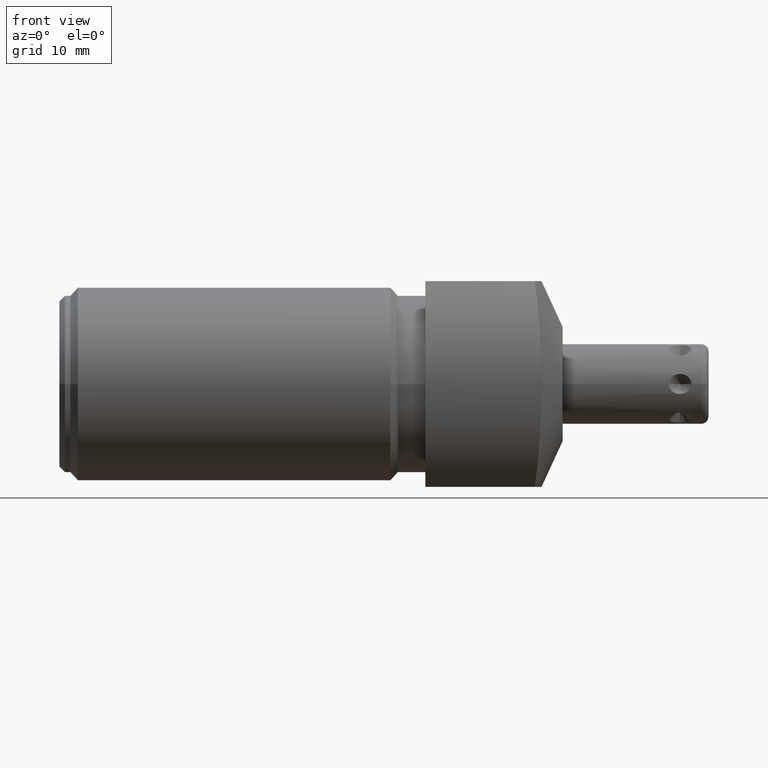
[diagram: clean part render]
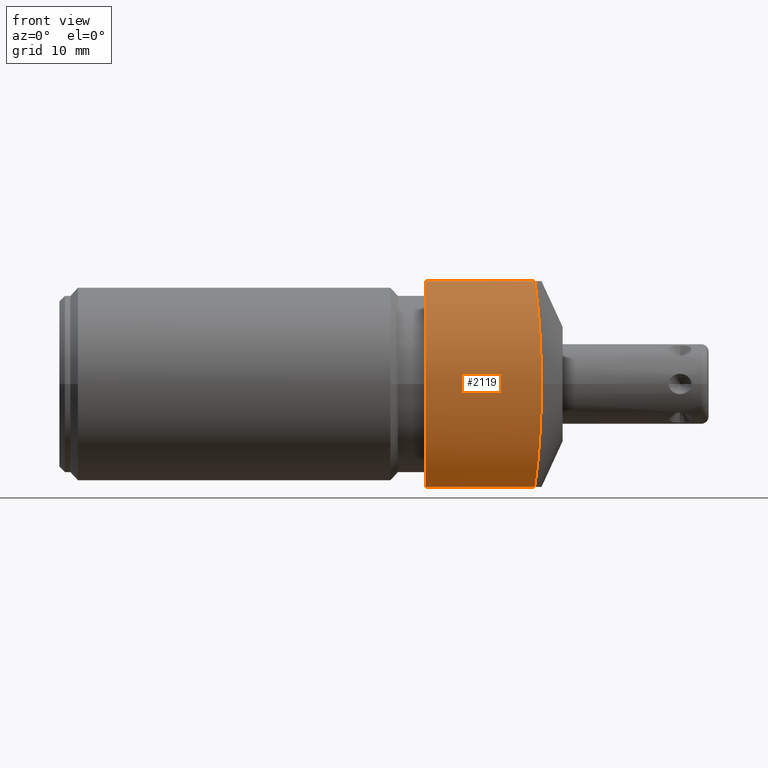
[diagram: same view with one face highlighted and labeled with its STEP entity id]
A machine part, front view. The second image highlights one B-rep face of the part: STEP entity #2119.
In plain terms, the highlighted cylindrical surface (partial cylindrical patch) has radius 19.05 mm, axis along (1, 0, 0).
Its self-contained STEP definition (entity closure, byte-faithful):
#206=DIRECTION('',(1.E0,0.E0,0.E0));
#207=VECTOR('',#206,5.976003223953E-1);
#208=CARTESIAN_POINT('',(0.E0,-4.960783708246E-1,-5.625E-1));
#209=LINE('',#208,#207);
#338=CARTESIAN_POINT('',(0.E0,0.E0,0.E0));
#339=DIRECTION('',(1.E0,0.E0,0.E0));
#340=DIRECTION('',(0.E0,-6.614378277661E-1,7.5E-1));
#341=AXIS2_PLACEMENT_3D('',#338,#339,#340);
#636=CARTESIAN_POINT('',(6.343557007776E-1,-7.5E-1,0.E0));
#637=CARTESIAN_POINT('',(6.343557007776E-1,-7.5E-1,-2.639945227058E-2));
#638=CARTESIAN_POINT('',(6.339228743735E-1,-7.472089192813E-1,
-7.921164799552E-2));
#639=CARTESIAN_POINT('',(6.319914703219E-1,-7.346925548924E-1,
-1.575620260070E-1));
#640=CARTESIAN_POINT('',(6.288224715053E-1,-7.139555821587E-1,
-2.342427704134E-1));
#641=CARTESIAN_POINT('',(6.244924603731E-1,-6.852191351177E-1,
-3.083562685212E-1));
#642=CARTESIAN_POINT('',(6.190914041522E-1,-6.487235541059E-1,
-3.791756269234E-1));
#643=CARTESIAN_POINT('',(6.127404277032E-1,-6.048849800505E-1,
-4.457974419392E-1));
#644=CARTESIAN_POINT('',(6.055634018664E-1,-5.541430465208E-1,
-5.074980845745E-1));
#645=CARTESIAN_POINT('',(6.003168663148E-1,-5.160731810444E-1,
-5.448662348822E-1));
#646=CARTESIAN_POINT('',(5.976003223953E-1,-4.960783708246E-1,-5.625E-1));
#704=DIRECTION('',(1.E0,0.E0,0.E0));
#705=VECTOR('',#704,5.976003223953E-1);
#706=CARTESIAN_POINT('',(0.E0,-4.960783708246E-1,5.625E-1));
#707=LINE('',#706,#705);
#851=CARTESIAN_POINT('',(5.976003223953E-1,-4.960783708246E-1,5.625E-1));
#852=CARTESIAN_POINT('',(6.003148187378E-1,-5.160581100889E-1,
5.448795262156E-1));
#853=CARTESIAN_POINT('',(6.055591584932E-1,-5.541126530407E-1,
5.075310416793E-1));
#854=CARTESIAN_POINT('',(6.127387135068E-1,-6.048732142353E-1,
4.458158248187E-1));
#855=CARTESIAN_POINT('',(6.190931965279E-1,-6.487359359638E-1,
3.791574280828E-1));
#856=CARTESIAN_POINT('',(6.244961663081E-1,-6.852439972541E-1,
3.083035404139E-1));
#857=CARTESIAN_POINT('',(6.288263025028E-1,-7.139808163733E-1,
2.341673035868E-1));
#858=CARTESIAN_POINT('',(6.319941013816E-1,-7.347096588366E-1,
1.574810061401E-1));
#859=CARTESIAN_POINT('',(6.339236696225E-1,-7.472140450314E-1,
7.915054299052E-2));
#860=CARTESIAN_POINT('',(6.343557007776E-1,-7.5E-1,2.637559111290E-2));
#861=CARTESIAN_POINT('',(6.343557007776E-1,-7.5E-1,0.E0));
#1485=CARTESIAN_POINT('',(0.E0,-4.960783708246E-1,-5.625E-1));
#1487=VERTEX_POINT('',#1485);
#1490=CARTESIAN_POINT('',(0.E0,-4.960783708246E-1,5.625E-1));
#1492=VERTEX_POINT('',#1490);
#1497=VERTEX_POINT('',#636);
#1498=VERTEX_POINT('',#646);
#1499=VERTEX_POINT('',#851);
#2105=CARTESIAN_POINT('',(7.5E-1,0.E0,0.E0));
#2106=DIRECTION('',(1.E0,0.E0,0.E0));
#2107=DIRECTION('',(0.E0,0.E0,-1.E0));
#2108=AXIS2_PLACEMENT_3D('',#2105,#2106,#2107);
#2109=CYLINDRICAL_SURFACE('',#2108,7.5E-1);
#2110=ORIENTED_EDGE('',*,*,#2092,.T.);
#2111=ORIENTED_EDGE('',*,*,#1766,.F.);
#2112=ORIENTED_EDGE('',*,*,#1841,.F.);
#2114=ORIENTED_EDGE('',*,*,#2113,.T.);
#2116=ORIENTED_EDGE('',*,*,#2115,.T.);
#2117=EDGE_LOOP('',(#2110,#2111,#2112,#2114,#2116));
#2118=FACE_OUTER_BOUND('',#2117,.F.);
#2119=ADVANCED_FACE('',(#2118),#2109,.T.);
#342=CIRCLE('',#341,7.5E-1);
#647=B_SPLINE_CURVE_WITH_KNOTS('',3,(#636,#637,#638,#639,#640,#641,#642,#643,
#644,#645,#646),.UNSPECIFIED.,.F.,.F.,(4,1,1,1,1,1,1,1,4),(0.E0,1.25E-1,2.5E-1,
3.75E-1,5.E-1,6.25E-1,7.5E-1,8.75E-1,1.E0),.UNSPECIFIED.);
#862=B_SPLINE_CURVE_WITH_KNOTS('',3,(#851,#852,#853,#854,#855,#856,#857,#858,
#859,#860,#861),.UNSPECIFIED.,.F.,.F.,(4,1,1,1,1,1,1,1,4),(0.E0,1.25E-1,2.5E-1,
3.75E-1,5.E-1,6.25E-1,7.5E-1,8.75E-1,1.E0),.UNSPECIFIED.);
#1766=EDGE_CURVE('',#1487,#1498,#209,.T.);
#1841=EDGE_CURVE('',#1492,#1487,#342,.T.);
#2092=EDGE_CURVE('',#1497,#1498,#647,.T.);
#2113=EDGE_CURVE('',#1492,#1499,#707,.T.);
#2115=EDGE_CURVE('',#1499,#1497,#862,.T.);